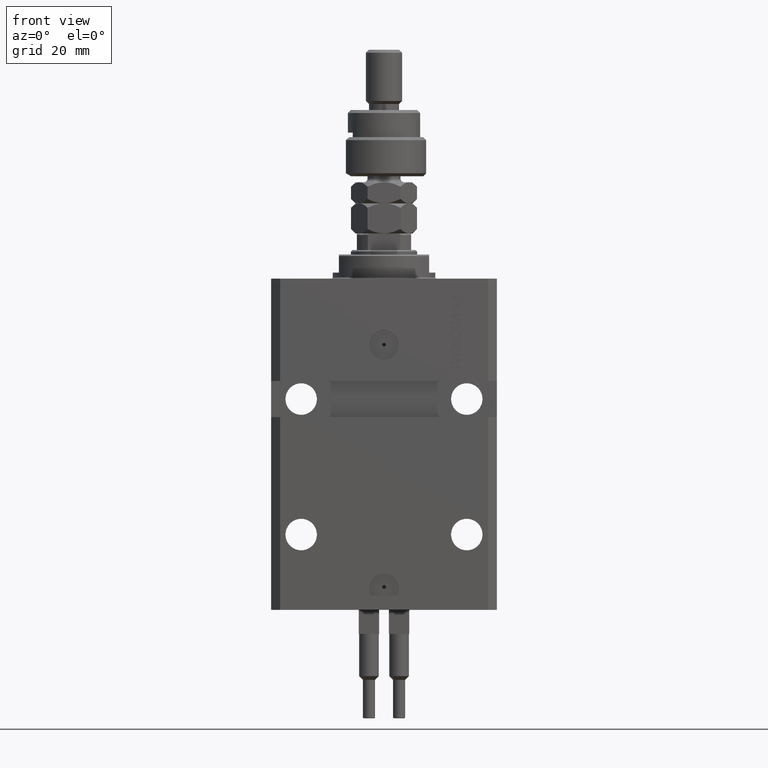
[diagram: clean part render]
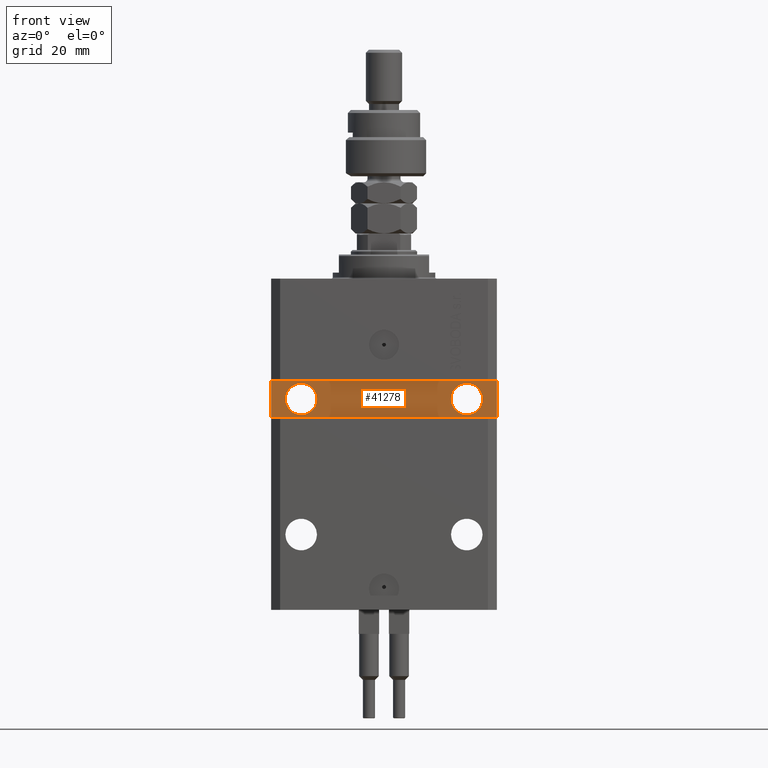
[diagram: same view with one face highlighted and labeled with its STEP entity id]
A machine part, front view. The second image highlights one B-rep face of the part: STEP entity #41278.
In plain terms, the highlighted planar face has unit normal (0, -1, 0).
Its self-contained STEP definition (entity closure, byte-faithful):
#87 = CARTESIAN_POINT ( 'NONE',  ( -37.50000000000000000, -24.50000000000000000, -34.00000000000000000 ) ) ;
#97 = EDGE_CURVE ( 'NONE', #43931, #36702, #20919, .T. ) ;
#609 = DIRECTION ( 'NONE',  ( 1.000000000000000000, 9.251858538542974046E-17, 0.000000000000000000 ) ) ;
#984 = DIRECTION ( 'NONE',  ( 1.101411730780568590E-16, -1.000000000000000000, 0.000000000000000000 ) ) ;
#1773 = EDGE_CURVE ( 'NONE', #45282, #7708, #19389, .T. ) ;
#3437 = VECTOR ( 'NONE', #30446, 1000.000000000000000 ) ;
#4563 = EDGE_CURVE ( 'NONE', #5362, #12984, #26857, .T. ) ;
#4645 = VECTOR ( 'NONE', #34355, 1000.000000000000000 ) ;
#5163 = ORIENTED_EDGE ( 'NONE', *, *, #4563, .T. ) ;
#5362 = VERTEX_POINT ( 'NONE', #48861 ) ;
#5499 = ORIENTED_EDGE ( 'NONE', *, *, #1773, .F. ) ;
#5684 = EDGE_LOOP ( 'NONE', ( #28691, #5499 ) ) ;
#7708 = VERTEX_POINT ( 'NONE', #24434 ) ;
#7842 = FACE_OUTER_BOUND ( 'NONE', #44207, .T. ) ;
#8265 = VERTEX_POINT ( 'NONE', #19187 ) ;
#8327 = FACE_BOUND ( 'NONE', #14637, .T. ) ;
#9303 = VECTOR ( 'NONE', #41957, 1000.000000000000000 ) ;
#9454 = AXIS2_PLACEMENT_3D ( 'NONE', #44572, #984, #16453 ) ;
#11217 = ORIENTED_EDGE ( 'NONE', *, *, #31835, .T. ) ;
#11384 = CARTESIAN_POINT ( 'NONE',  ( 37.49999999999999289, -24.49999999999999289, -46.00000000000000711 ) ) ;
#12214 = FACE_BOUND ( 'NONE', #5684, .T. ) ;
#12287 = AXIS2_PLACEMENT_3D ( 'NONE', #19909, #26921, #23542 ) ;
#12984 = VERTEX_POINT ( 'NONE', #47442 ) ;
#14601 = EDGE_CURVE ( 'NONE', #12984, #8265, #49107, .T. ) ;
#14637 = EDGE_LOOP ( 'NONE', ( #18780, #46992 ) ) ;
#15178 = CARTESIAN_POINT ( 'NONE',  ( -37.50000000000000000, -24.50000000000000000, -46.00000000000000000 ) ) ;
#16453 = DIRECTION ( 'NONE',  ( 1.000000000000000000, 0.000000000000000000, 0.000000000000000000 ) ) ;
#18780 = ORIENTED_EDGE ( 'NONE', *, *, #97, .F. ) ;
#19187 = CARTESIAN_POINT ( 'NONE',  ( -37.50000000000000000, -24.50000000000000000, -34.00000000000000000 ) ) ;
#19389 = CIRCLE ( 'NONE', #24295, 5.249999999999994671 ) ;
#19675 = LINE ( 'NONE', #87, #9303 ) ;
#19909 = CARTESIAN_POINT ( 'NONE',  ( 27.50000000000000711, -24.49999999999999289, -40.00000000000000000 ) ) ;
#20196 = CARTESIAN_POINT ( 'NONE',  ( 2.191435984341281325E-15, -24.49999999999999645, 0.000000000000000000 ) ) ;
#20919 = CIRCLE ( 'NONE', #44841, 5.249999999999997335 ) ;
#21161 = EDGE_CURVE ( 'NONE', #7708, #45282, #50184, .T. ) ;
#23302 = ORIENTED_EDGE ( 'NONE', *, *, #44294, .T. ) ;
#23442 = VERTEX_POINT ( 'NONE', #15178 ) ;
#23542 = DIRECTION ( 'NONE',  ( 1.000000000000000000, 0.000000000000000000, 0.000000000000000000 ) ) ;
#24060 = PLANE ( 'NONE',  #48355 ) ;
#24295 = AXIS2_PLACEMENT_3D ( 'NONE', #48010, #32302, #40542 ) ;
#24434 = CARTESIAN_POINT ( 'NONE',  ( 32.75000000000000000, -24.49999999999999289, -40.00000000000000000 ) ) ;
#26334 = VECTOR ( 'NONE', #36136, 1000.000000000000000 ) ;
#26557 = CARTESIAN_POINT ( 'NONE',  ( -37.50000000000000000, -24.50000000000000000, -46.00000000000000000 ) ) ;
#26857 = LINE ( 'NONE', #11384, #4645 ) ;
#26921 = DIRECTION ( 'NONE',  ( 1.171720209325604191E-16, -1.000000000000000000, 0.000000000000000000 ) ) ;
#27327 = LINE ( 'NONE', #26557, #3437 ) ;
#27639 = CARTESIAN_POINT ( 'NONE',  ( -22.24999999999999645, -24.50000000000000000, -40.00000000000000711 ) ) ;
#28691 = ORIENTED_EDGE ( 'NONE', *, *, #21161, .F. ) ;
#28854 = CARTESIAN_POINT ( 'NONE',  ( 22.25000000000001421, -24.49999999999999289, -40.00000000000000000 ) ) ;
#30446 = DIRECTION ( 'NONE',  ( 1.000000000000000000, 9.251858538542972814E-17, -9.251858538542972814E-17 ) ) ;
#31696 = CIRCLE ( 'NONE', #9454, 5.249999999999997335 ) ;
#31835 = EDGE_CURVE ( 'NONE', #8265, #23442, #19675, .T. ) ;
#32302 = DIRECTION ( 'NONE',  ( 1.171720209325604191E-16, -1.000000000000000000, 0.000000000000000000 ) ) ;
#32989 = CARTESIAN_POINT ( 'NONE',  ( -27.49999999999999289, -24.50000000000000000, -40.00000000000000711 ) ) ;
#34355 = DIRECTION ( 'NONE',  ( 0.000000000000000000, 0.000000000000000000, 1.000000000000000000 ) ) ;
#35341 = EDGE_CURVE ( 'NONE', #36702, #43931, #31696, .T. ) ;
#35943 = DIRECTION ( 'NONE',  ( 9.251858538542974046E-17, -1.000000000000000000, 0.000000000000000000 ) ) ;
#36136 = DIRECTION ( 'NONE',  ( -1.000000000000000000, -9.251858538542972814E-17, -2.775557561562891844E-16 ) ) ;
#36702 = VERTEX_POINT ( 'NONE', #37988 ) ;
#37348 = DIRECTION ( 'NONE',  ( 1.101411730780568590E-16, -1.000000000000000000, 0.000000000000000000 ) ) ;
#37988 = CARTESIAN_POINT ( 'NONE',  ( -32.74999999999999289, -24.50000000000000000, -40.00000000000000711 ) ) ;
#38920 = ORIENTED_EDGE ( 'NONE', *, *, #14601, .T. ) ;
#40542 = DIRECTION ( 'NONE',  ( 1.000000000000000000, 0.000000000000000000, 0.000000000000000000 ) ) ;
#41278 = ADVANCED_FACE ( 'NONE', ( #12214, #8327, #7842 ), #24060, .T. ) ;
#41957 = DIRECTION ( 'NONE',  ( 0.000000000000000000, 0.000000000000000000, -1.000000000000000000 ) ) ;
#43931 = VERTEX_POINT ( 'NONE', #27639 ) ;
#44207 = EDGE_LOOP ( 'NONE', ( #23302, #5163, #38920, #11217 ) ) ;
#44294 = EDGE_CURVE ( 'NONE', #23442, #5362, #27327, .T. ) ;
#44572 = CARTESIAN_POINT ( 'NONE',  ( -27.49999999999999289, -24.50000000000000000, -40.00000000000000711 ) ) ;
#44841 = AXIS2_PLACEMENT_3D ( 'NONE', #32989, #37348, #49202 ) ;
#45282 = VERTEX_POINT ( 'NONE', #28854 ) ;
#46992 = ORIENTED_EDGE ( 'NONE', *, *, #35341, .F. ) ;
#47442 = CARTESIAN_POINT ( 'NONE',  ( 37.49999999999999289, -24.49999999999999289, -33.99999999999997868 ) ) ;
#48010 = CARTESIAN_POINT ( 'NONE',  ( 27.50000000000000711, -24.49999999999999289, -40.00000000000000000 ) ) ;
#48355 = AXIS2_PLACEMENT_3D ( 'NONE', #20196, #35943, #609 ) ;
#48504 = CARTESIAN_POINT ( 'NONE',  ( 37.49999999999999289, -24.49999999999999289, -33.99999999999997868 ) ) ;
#48861 = CARTESIAN_POINT ( 'NONE',  ( 37.49999999999999289, -24.49999999999999289, -46.00000000000000711 ) ) ;
#49107 = LINE ( 'NONE', #48504, #26334 ) ;
#49202 = DIRECTION ( 'NONE',  ( 1.000000000000000000, 0.000000000000000000, 0.000000000000000000 ) ) ;
#50184 = CIRCLE ( 'NONE', #12287, 5.249999999999994671 ) ;